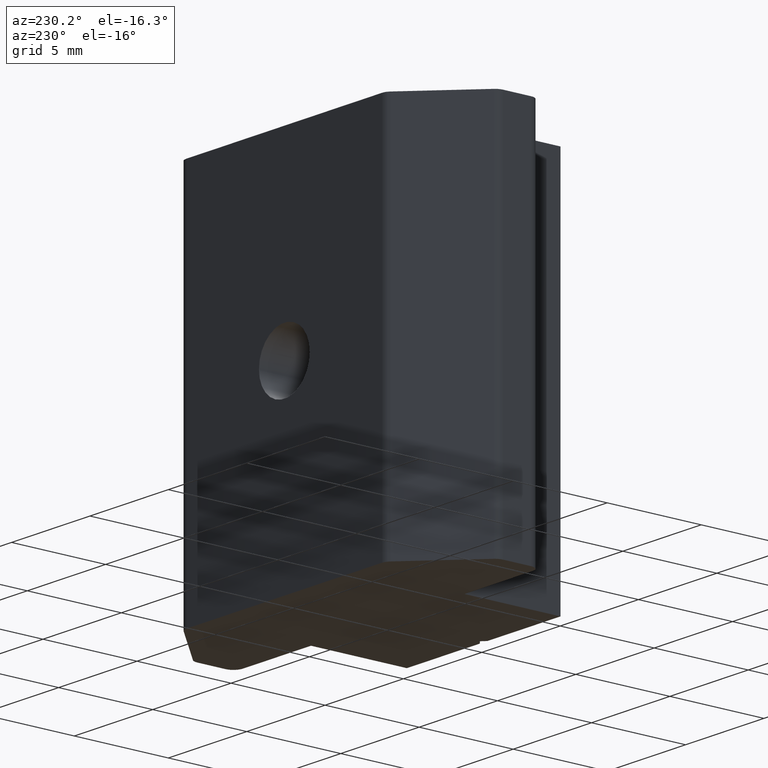
[diagram: clean part render]
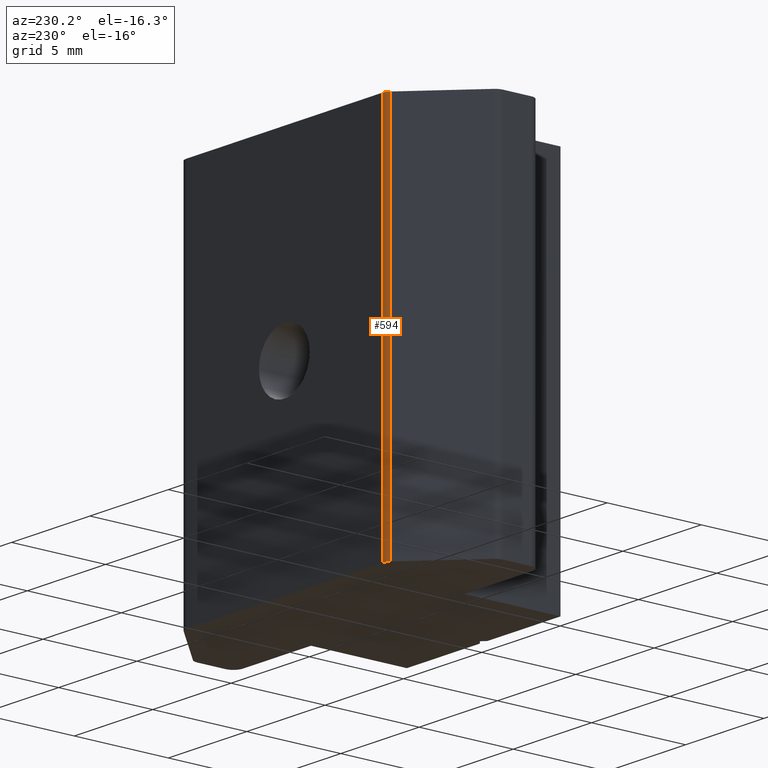
[diagram: same view with one face highlighted and labeled with its STEP entity id]
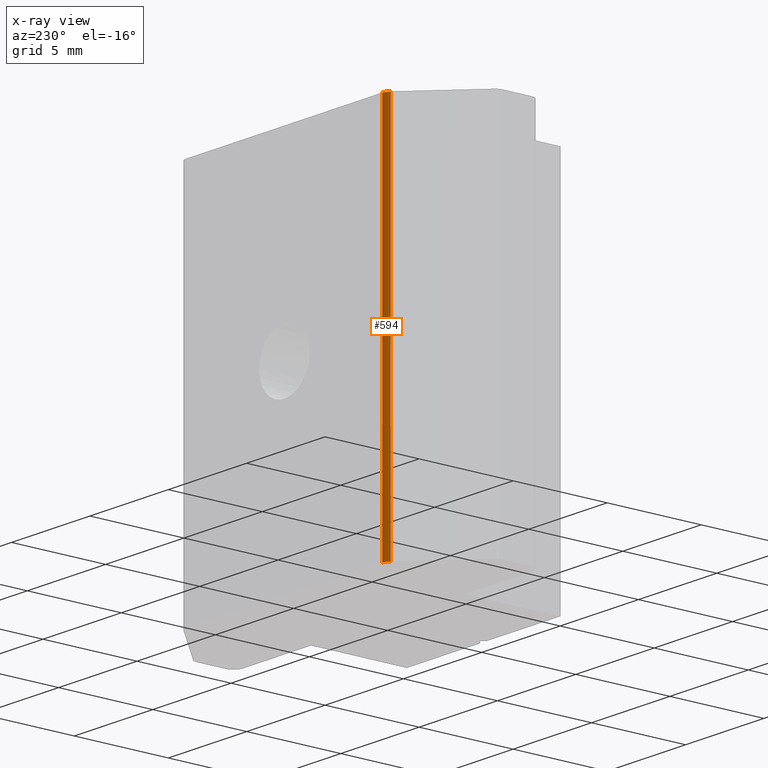
[diagram: x-ray of the same camera — body ghosted, the highlighted face saturated]
A machine part, auxiliary view. The second image highlights one B-rep face of the part: STEP entity #594.
The next image is the same camera in x-ray: the body ghosted, the highlighted face saturated — about 0% of this face is hidden behind the body in this view.
In plain terms, the highlighted cylindrical surface (edge-blend (fillet) strip) has radius 0.5 mm, axis along (0, 0, 1).
Its self-contained STEP definition (entity closure, byte-faithful):
#54=FACE_OUTER_BOUND('',#84,.T.);
#84=EDGE_LOOP('',(#504,#505,#506,#507));
#147=LINE('',#1035,#202);
#148=LINE('',#1039,#203);
#202=VECTOR('',#813,10.);
#203=VECTOR('',#818,10.);
#227=CIRCLE('',#654,0.499999999999994);
#233=CIRCLE('',#668,0.499999999999994);
#273=VERTEX_POINT('',#989);
#274=VERTEX_POINT('',#991);
#288=VERTEX_POINT('',#1033);
#289=VERTEX_POINT('',#1037);
#346=EDGE_CURVE('',#273,#274,#227,.T.);
#368=EDGE_CURVE('',#273,#288,#147,.T.);
#369=EDGE_CURVE('',#289,#288,#233,.T.);
#370=EDGE_CURVE('',#274,#289,#148,.T.);
#504=ORIENTED_EDGE('',*,*,#368,.T.);
#505=ORIENTED_EDGE('',*,*,#369,.F.);
#506=ORIENTED_EDGE('',*,*,#370,.F.);
#507=ORIENTED_EDGE('',*,*,#346,.F.);
#569=CYLINDRICAL_SURFACE('',#667,0.499999999999994);
#594=ADVANCED_FACE('',(#54),#569,.T.);
#654=AXIS2_PLACEMENT_3D('',#992,#771,#772);
#667=AXIS2_PLACEMENT_3D('',#1036,#814,#815);
#668=AXIS2_PLACEMENT_3D('',#1038,#816,#817);
#771=DIRECTION('center_axis',(0.,0.,-1.));
#772=DIRECTION('ref_axis',(0.,1.,0.));
#813=DIRECTION('',(0.,0.,1.));
#814=DIRECTION('center_axis',(0.,0.,1.));
#815=DIRECTION('ref_axis',(0.,1.,0.));
#816=DIRECTION('center_axis',(0.,0.,1.));
#817=DIRECTION('ref_axis',(0.,1.,0.));
#818=DIRECTION('',(0.,0.,1.));
#989=CARTESIAN_POINT('',(-6.60355339059328,5.35355339059327,-10.));
#991=CARTESIAN_POINT('',(-6.25,5.5,-10.));
#992=CARTESIAN_POINT('Origin',(-6.25,5.,-10.));
#1033=CARTESIAN_POINT('',(-6.60355339059328,5.35355339059327,10.));
#1035=CARTESIAN_POINT('',(-6.60355339059328,5.35355339059327,0.));
#1036=CARTESIAN_POINT('Origin',(-6.25,5.,0.));
#1037=CARTESIAN_POINT('',(-6.25,5.5,10.));
#1038=CARTESIAN_POINT('Origin',(-6.25,5.,10.));
#1039=CARTESIAN_POINT('',(-6.25,5.5,0.));